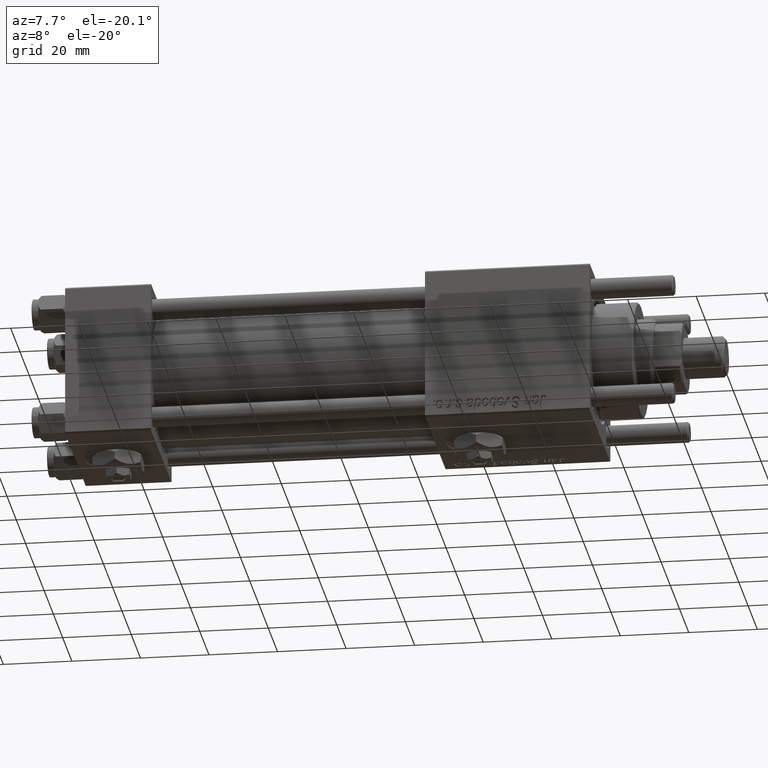
[diagram: clean part render]
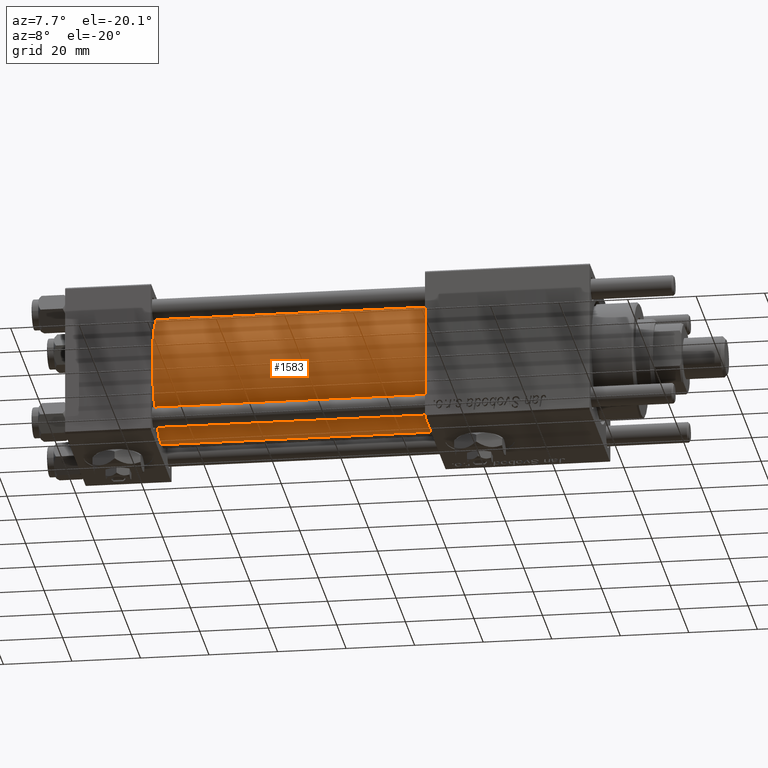
[diagram: same view with one face highlighted and labeled with its STEP entity id]
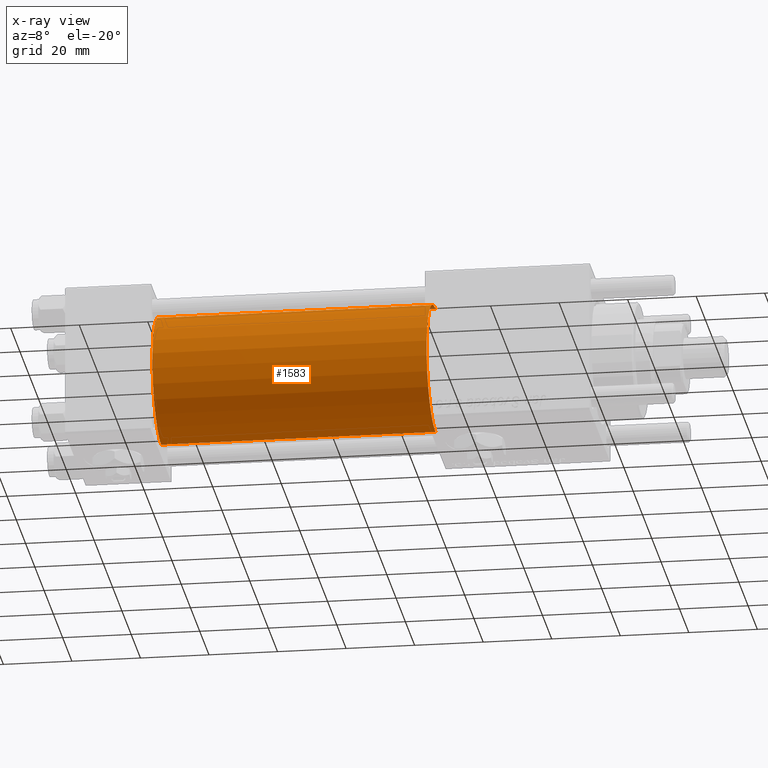
[diagram: x-ray of the same camera — body ghosted, the highlighted face saturated]
A machine part, auxiliary view. The second image highlights one B-rep face of the part: STEP entity #1583.
The next image is the same camera in x-ray: the body ghosted, the highlighted face saturated — about 0% of this face is hidden behind the body in this view.
In plain terms, the highlighted cylindrical surface (partial cylindrical patch) has radius 19 mm, axis along (-1, -0, -0).
Its self-contained STEP definition (entity closure, byte-faithful):
#1583 = ADVANCED_FACE ( 'NONE', ( #25116 ), #48779, .T. ) ;
#1693 = VERTEX_POINT ( 'NONE', #29975 ) ;
#2240 = CARTESIAN_POINT ( 'NONE',  ( 105.0000000000000142, -2.602085213965210642E-15, 19.00000000000000000 ) ) ;
#3460 = AXIS2_PLACEMENT_3D ( 'NONE', #55548, #42204, #46170 ) ;
#4045 = LINE ( 'NONE', #41083, #8459 ) ;
#6501 = CARTESIAN_POINT ( 'NONE',  ( 105.0000000000000142, -2.602085213965210642E-15, 19.00000000000000000 ) ) ;
#6623 = DIRECTION ( 'NONE',  ( 1.000000000000000000, 0.000000000000000000, 0.000000000000000000 ) ) ;
#8459 = VECTOR ( 'NONE', #26809, 1000.000000000000000 ) ;
#11969 = AXIS2_PLACEMENT_3D ( 'NONE', #38501, #6623, #29073 ) ;
#13369 = ORIENTED_EDGE ( 'NONE', *, *, #35221, .T. ) ;
#14960 = CARTESIAN_POINT ( 'NONE',  ( 24.99999999999999289, -2.602085213965210642E-15, 19.00000000000000000 ) ) ;
#16062 = CIRCLE ( 'NONE', #3460, 19.00000000000000000 ) ;
#17758 = CIRCLE ( 'NONE', #11969, 19.00000000000000000 ) ;
#19844 = DIRECTION ( 'NONE',  ( -1.000000000000000000, -0.000000000000000000, -0.000000000000000000 ) ) ;
#24396 = LINE ( 'NONE', #6501, #51700 ) ;
#25116 = FACE_OUTER_BOUND ( 'NONE', #26416, .T. ) ;
#26416 = EDGE_LOOP ( 'NONE', ( #37535, #28725, #13369, #49191 ) ) ;
#26809 = DIRECTION ( 'NONE',  ( -1.000000000000000000, -0.000000000000000000, -0.000000000000000000 ) ) ;
#28725 = ORIENTED_EDGE ( 'NONE', *, *, #31036, .F. ) ;
#29073 = DIRECTION ( 'NONE',  ( 0.000000000000000000, 0.000000000000000000, -1.000000000000000000 ) ) ;
#29975 = CARTESIAN_POINT ( 'NONE',  ( 24.99999999999999289, -2.752562955852396712E-16, -19.00000000000000000 ) ) ;
#31036 = EDGE_CURVE ( 'NONE', #50156, #54887, #17758, .T. ) ;
#35221 = EDGE_CURVE ( 'NONE', #50156, #43756, #24396, .T. ) ;
#37535 = ORIENTED_EDGE ( 'NONE', *, *, #51117, .F. ) ;
#38501 = CARTESIAN_POINT ( 'NONE',  ( 105.0000000000000142, -2.602085213965210642E-15, 0.000000000000000000 ) ) ;
#40256 = AXIS2_PLACEMENT_3D ( 'NONE', #47882, #57274, #43339 ) ;
#41083 = CARTESIAN_POINT ( 'NONE',  ( 105.0000000000000142, -2.752562955852396712E-16, -19.00000000000000000 ) ) ;
#42204 = DIRECTION ( 'NONE',  ( 1.000000000000000000, -0.000000000000000000, 0.000000000000000000 ) ) ;
#42208 = EDGE_CURVE ( 'NONE', #43756, #1693, #16062, .T. ) ;
#43339 = DIRECTION ( 'NONE',  ( 0.000000000000000000, 0.000000000000000000, 1.000000000000000000 ) ) ;
#43756 = VERTEX_POINT ( 'NONE', #14960 ) ;
#45471 = CARTESIAN_POINT ( 'NONE',  ( 105.0000000000000142, -2.752562955852396712E-16, -19.00000000000000000 ) ) ;
#46170 = DIRECTION ( 'NONE',  ( 0.000000000000000000, 0.000000000000000000, 1.000000000000000000 ) ) ;
#47882 = CARTESIAN_POINT ( 'NONE',  ( 105.0000000000000142, -2.602085213965210642E-15, 0.000000000000000000 ) ) ;
#48779 = CYLINDRICAL_SURFACE ( 'NONE', #40256, 19.00000000000000000 ) ;
#49191 = ORIENTED_EDGE ( 'NONE', *, *, #42208, .T. ) ;
#50156 = VERTEX_POINT ( 'NONE', #2240 ) ;
#51117 = EDGE_CURVE ( 'NONE', #54887, #1693, #4045, .T. ) ;
#51700 = VECTOR ( 'NONE', #19844, 1000.000000000000000 ) ;
#54887 = VERTEX_POINT ( 'NONE', #45471 ) ;
#55548 = CARTESIAN_POINT ( 'NONE',  ( 24.99999999999999289, -2.602085213965210642E-15, 0.000000000000000000 ) ) ;
#57274 = DIRECTION ( 'NONE',  ( -1.000000000000000000, -0.000000000000000000, -0.000000000000000000 ) ) ;